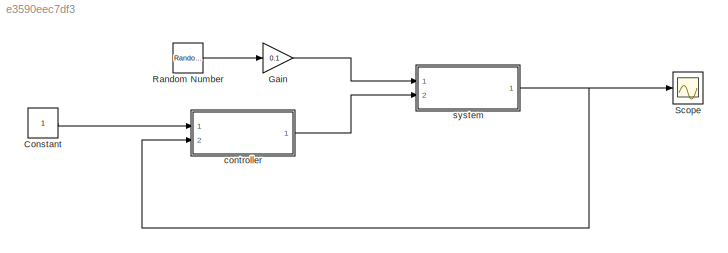
MODEL slx_e3590eec7df3
KIND model
CONFIG AbsTol = auto
CONFIG EnableMultiTasking = off
CONFIG FixedStep = auto
CONFIG MaxStep = auto
CONFIG MinStep = auto
CONFIG RelTol = 1e-3
CONFIG SampleTimeConstraint = Unconstrained
CONFIG SolverName = VariableStepAuto
CONFIG StartTime = 0.0
CONFIG StopTime = 10.0
BLOCK [Constant] Constant
BLOCK [Gain] Gain
  Gain = 0.1
BLOCK [RandomNumber] Random Number
  SampleTime = 0.1
  Variance = 0.01
BLOCK [Scope] Scope
  Floating = off
  NumInputPorts = 1
  Ports = [1]
  ScopeSpecificationString = Simulink.scopes.TimeScopeBlockCfg('CurrentConfiguration', extmgr.ConfigurationSet(extmgr.Configuration('Core','General UI',true),extmgr.Configuration('Core','Source UI',true),extmgr.Configuration('Sources','WiredSimulink',true),extmgr.Configuration('Visuals','Time Domain',true,'SerializedDisplays',{struct('MinYLimReal','-0.09325','MaxYLimReal','1.18876','YLabelReal','','MinYLimMag','0.00000','MaxY...<+1359ch>
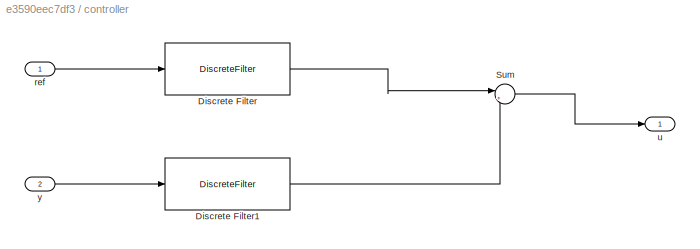
BLOCK [SubSystem] controller
  Ports = [2, 1]
  RequestExecContextInheritance = off
BLOCK [DiscreteFilter] controller/Discrete Filter
  Denominator = conv(B,F)
  InputPortMap = u0
  Numerator = [C]
  Ports = [1, 1]
BLOCK [DiscreteFilter] controller/Discrete Filter1
  Denominator = conv(B,F)
  InputPortMap = u0
  Numerator = [G]
  Ports = [1, 1]
BLOCK [Sum] controller/Sum
  Inputs = |+-
  Ports = [2, 1]
BLOCK [Inport] controller/ref
BLOCK [Outport] controller/u
BLOCK [Inport] controller/y
  Port = 2
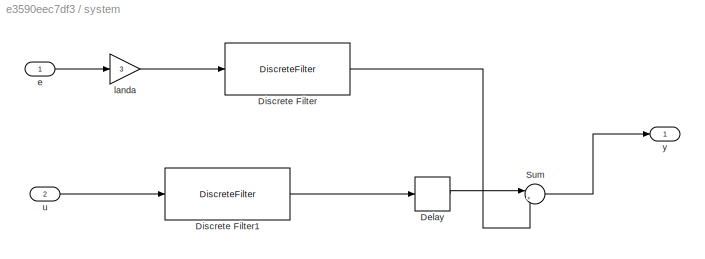
BLOCK [SubSystem] system
  Ports = [2, 1]
  RequestExecContextInheritance = off
BLOCK [Delay] system/Delay
  DelayLength = 1
  InitialCondition = 0
  InputPortMap = u0
  Ports = [1, 1]
BLOCK [DiscreteFilter] system/Discrete Filter
  Denominator = A
  InputPortMap = u0
  Numerator = [C]
  Ports = [1, 1]
BLOCK [DiscreteFilter] system/Discrete Filter1
  Denominator = A
  InputPortMap = u0
  Numerator = B
  Ports = [1, 1]
BLOCK [Sum] system/Sum
  Inputs = |++
  Ports = [2, 1]
BLOCK [Inport] system/e
BLOCK [Gain] system/landa
  Gain = 3
BLOCK [Inport] system/u
  Port = 2
BLOCK [Outport] system/y
LINE Constant:1 -> controller:1
LINE Gain:1 -> system:1
LINE Random Number:1 -> Gain:1
LINE controller/Discrete Filter1:1 -> controller/Sum:2
LINE controller/Discrete Filter:1 -> controller/Sum:1
LINE controller/Sum:1 -> controller/u:1
LINE controller/ref:1 -> controller/Discrete Filter:1
LINE controller/y:1 -> controller/Discrete Filter1:1
LINE controller:1 -> system:2
LINE system/Delay:1 -> system/Sum:1
LINE system/Discrete Filter1:1 -> system/Delay:1
LINE system/Discrete Filter:1 -> system/Sum:2
LINE system/Sum:1 -> system/y:1
LINE system/e:1 -> system/landa:1
LINE system/landa:1 -> system/Discrete Filter:1
LINE system/u:1 -> system/Discrete Filter1:1
NET system:1 -> Scope:1, controller:2
note: NET lines group one-source signal fan-out (src -> all destinations, sorted); 1:1 wires keep LINE
